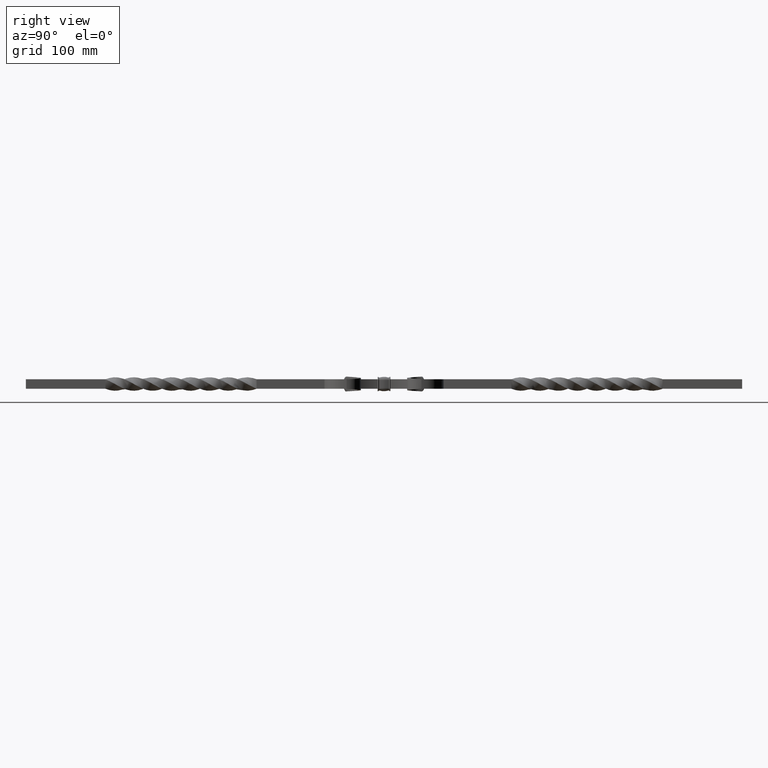
[diagram: clean part render]
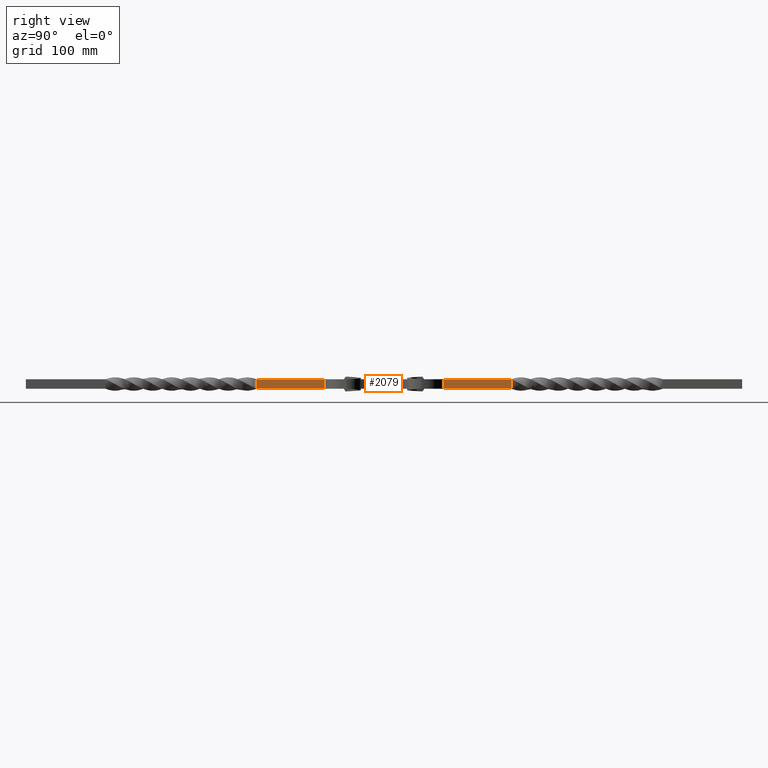
[diagram: same view with one face highlighted and labeled with its STEP entity id]
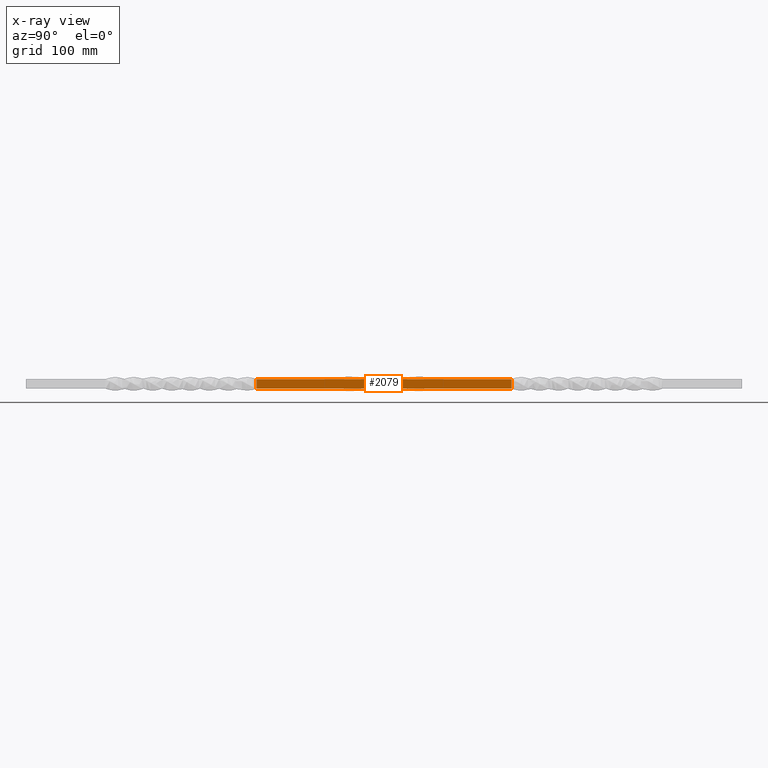
[diagram: x-ray of the same camera — body ghosted, the highlighted face saturated]
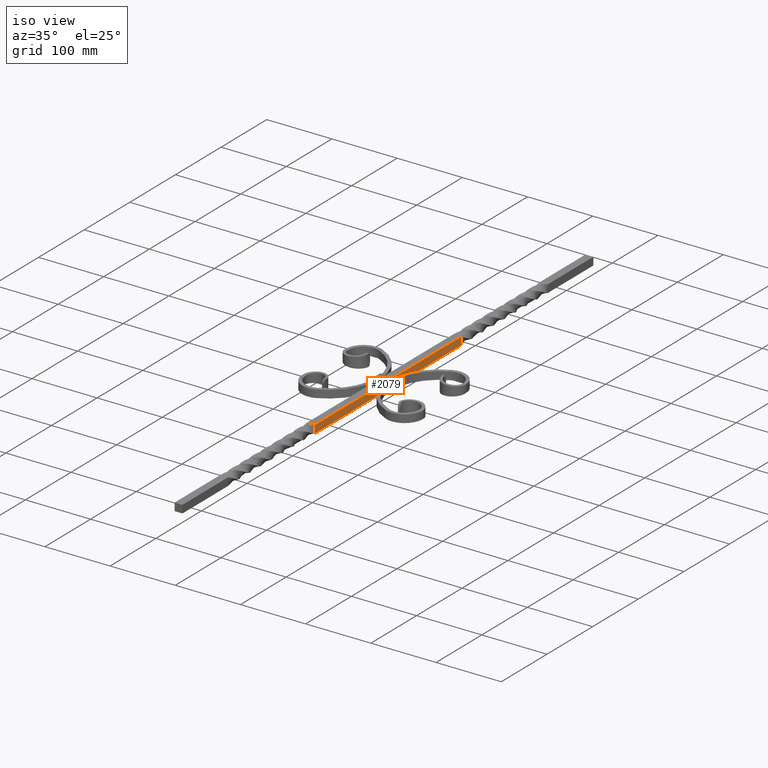
[diagram: same view with one face highlighted and labeled with its STEP entity id]
A machine part, right view. The second image highlights one B-rep face of the part: STEP entity #2079.
The next image is the same camera in x-ray: the body ghosted, the highlighted face saturated — about 0% of this face is hidden behind the body in this view.
A second angle (iso view) of the same face is appended — the face is thin or edge-on in the first view.
In plain terms, the highlighted planar face has unit normal (-1, -0, 0).
Its self-contained STEP definition (entity closure, byte-faithful):
#67 = CARTESIAN_POINT ( 'NONE',  ( 5.999999992773852320, -159.9999999737289897, -6.000000001710718678 ) ) ;
#113 = EDGE_LOOP ( 'NONE', ( #10542, #13219, #3646, #1702 ) ) ;
#839 = DIRECTION ( 'NONE',  ( 6.752312110864214897E-11, -1.131452293903462314E-20, 1.000000000000000000 ) ) ;
#1702 = ORIENTED_EDGE ( 'NONE', *, *, #2948, .T. ) ;
#1872 = EDGE_CURVE ( 'NONE', #6043, #13446, #7604, .T. ) ;
#2079 = ADVANCED_FACE ( 'NONE', ( #14004 ), #14023, .F. ) ;
#2329 = CARTESIAN_POINT ( 'NONE',  ( 5.999999978469008788, 160.0000000704941101, -6.000000037018622834 ) ) ;
#2414 = VERTEX_POINT ( 'NONE', #10748 ) ;
#2948 = EDGE_CURVE ( 'NONE', #2414, #14197, #8697, .T. ) ;
#3646 = ORIENTED_EDGE ( 'NONE', *, *, #11306, .F. ) ;
#4322 = CARTESIAN_POINT ( 'NONE',  ( 6.000000000405144363, -53.33333316666661261, 5.999999999594860967 ) ) ;
#5009 = CARTESIAN_POINT ( 'NONE',  ( 6.000000034778341984, -159.9999998162331565, 5.999999999594856526 ) ) ;
#5225 = LINE ( 'NONE', #6327, #14609 ) ;
#5627 = CARTESIAN_POINT ( 'NONE',  ( 6.000000034778341984, -159.9999998162331565, 5.999999999594856526 ) ) ;
#6041 = DIRECTION ( 'NONE',  ( -1.000000000000000000, -1.777588897360127360E-22, 6.752312110864214897E-11 ) ) ;
#6043 = VERTEX_POINT ( 'NONE', #16697 ) ;
#6220 = CARTESIAN_POINT ( 'NONE',  ( 5.999999999594864519, 450.0000000000000000, -6.000000000405139922 ) ) ;
#6327 = CARTESIAN_POINT ( 'NONE',  ( 5.999999999594864519, -159.9999999737289897, -6.000000000405139922 ) ) ;
#7184 = EDGE_CURVE ( 'NONE', #13446, #14197, #5225, .T. ) ;
#7344 = CARTESIAN_POINT ( 'NONE',  ( 5.999999995047519796, 53.33333334211130250, -6.000000000405139922 ) ) ;
#7389 = DIRECTION ( 'NONE',  ( 6.752312110864214897E-11, -1.131452293903462314E-20, 1.000000000000000000 ) ) ;
#7409 = CARTESIAN_POINT ( 'NONE',  ( 5.999999992773852320, -159.9999999737289897, -6.000000001710718678 ) ) ;
#7604 = B_SPLINE_CURVE_WITH_KNOTS ( 'NONE', 3,
 ( #2329, #7344, #11455, #7409 ),
 .UNSPECIFIED., .F., .F.,
 ( 4, 4 ),
 ( 0.000000000000000000, 1.000000000000000000 ),
 .UNSPECIFIED. ) ;
#8697 = B_SPLINE_CURVE_WITH_KNOTS ( 'NONE', 3,
 ( #12274, #13621, #4322, #5627 ),
 .UNSPECIFIED., .F., .F.,
 ( 4, 4 ),
 ( 0.000000000000000000, 1.000000000000000000 ),
 .UNSPECIFIED. ) ;
#8823 = LINE ( 'NONE', #12119, #16558 ) ;
#10542 = ORIENTED_EDGE ( 'NONE', *, *, #7184, .F. ) ;
#10748 = CARTESIAN_POINT ( 'NONE',  ( 6.000000000405149692, 160.0000000003921059, 5.999999999594860967 ) ) ;
#11306 = EDGE_CURVE ( 'NONE', #2414, #6043, #8823, .T. ) ;
#11455 = CARTESIAN_POINT ( 'NONE',  ( 5.999999990500178626, -53.33333331580883652, -6.000000000405139922 ) ) ;
#12119 = CARTESIAN_POINT ( 'NONE',  ( 5.999999999594864519, 159.9999999999999716, -6.000000000405139922 ) ) ;
#12274 = CARTESIAN_POINT ( 'NONE',  ( 6.000000000405149692, 160.0000000003921059, 5.999999999594860967 ) ) ;
#13104 = AXIS2_PLACEMENT_3D ( 'NONE', #6220, #6041, #7389 ) ;
#13219 = ORIENTED_EDGE ( 'NONE', *, *, #1872, .F. ) ;
#13446 = VERTEX_POINT ( 'NONE', #67 ) ;
#13621 = CARTESIAN_POINT ( 'NONE',  ( 6.000000000405147027, 53.33333341666666172, 5.999999999594860967 ) ) ;
#14004 = FACE_OUTER_BOUND ( 'NONE', #113, .T. ) ;
#14023 = PLANE ( 'NONE',  #13104 ) ;
#14197 = VERTEX_POINT ( 'NONE', #5009 ) ;
#14609 = VECTOR ( 'NONE', #839, 1000.000000000000000 ) ;
#14859 = DIRECTION ( 'NONE',  ( -6.752312110864214897E-11, 1.131452293903462314E-20, -1.000000000000000000 ) ) ;
#16558 = VECTOR ( 'NONE', #14859, 1000.000000000000000 ) ;
#16697 = CARTESIAN_POINT ( 'NONE',  ( 5.999999978469008788, 160.0000000704941101, -6.000000037018622834 ) ) ;